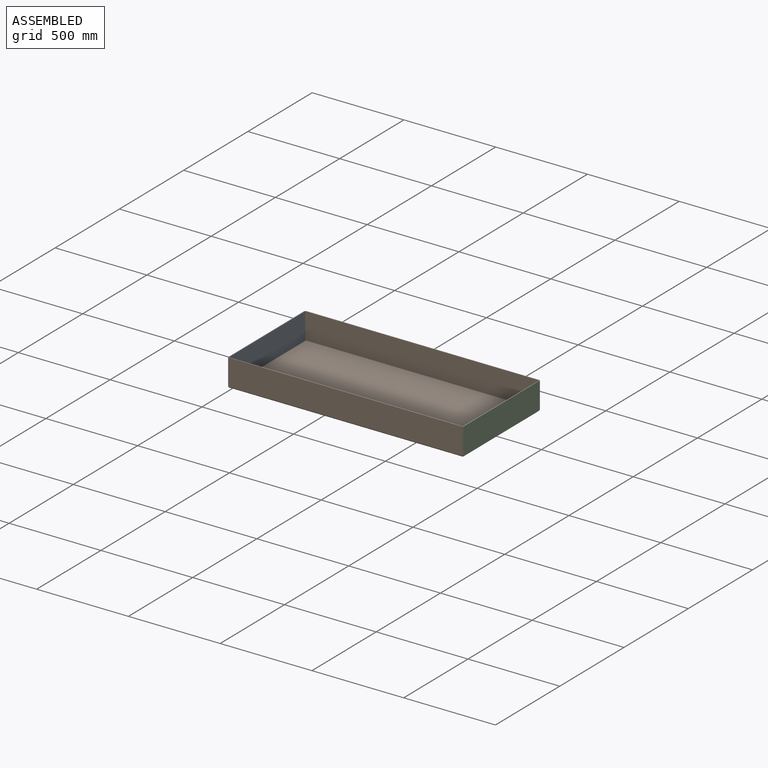
[diagram: assembled view]
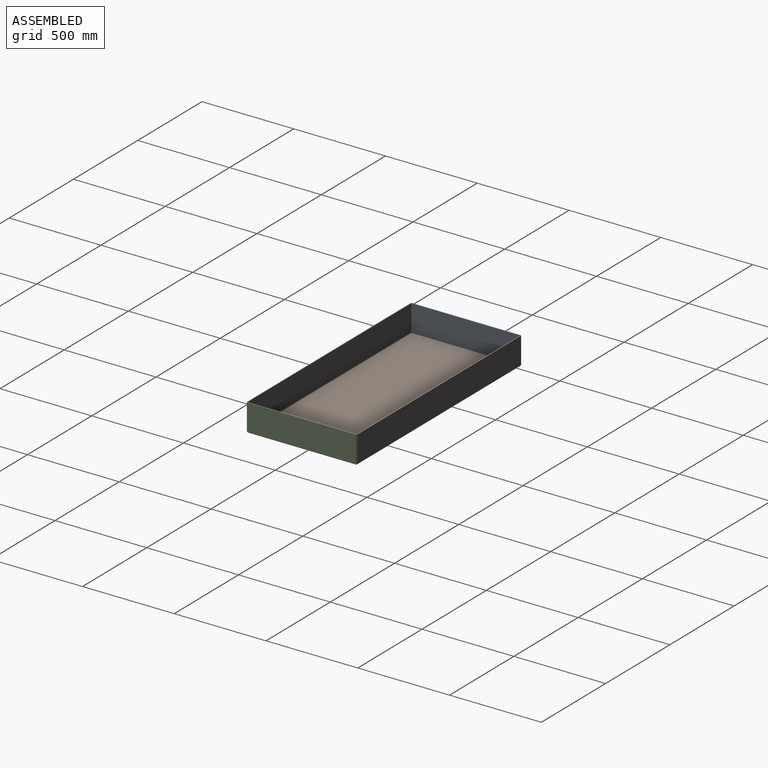
[diagram: assembled view, second angle]
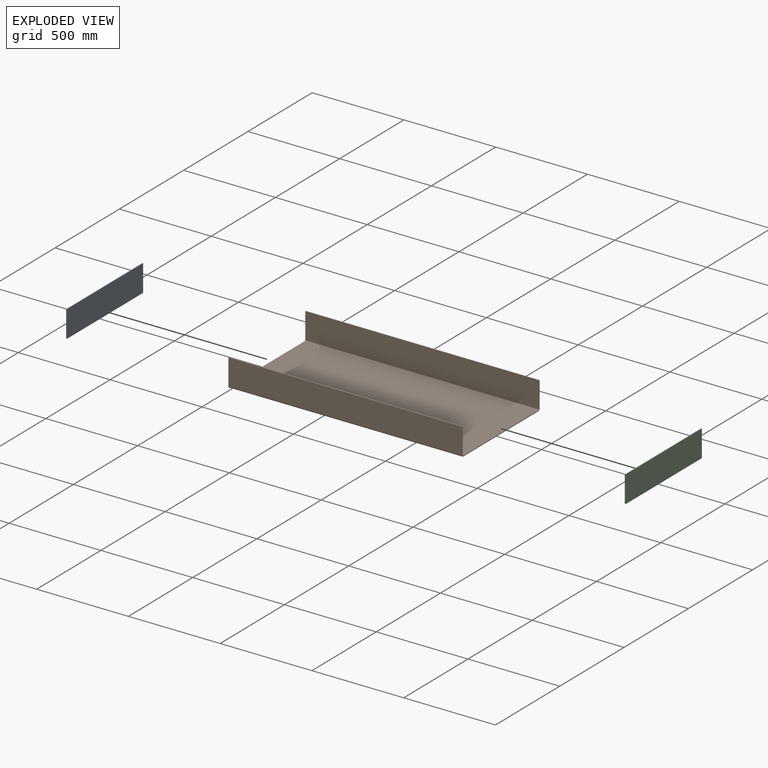
[diagram: exploded view]
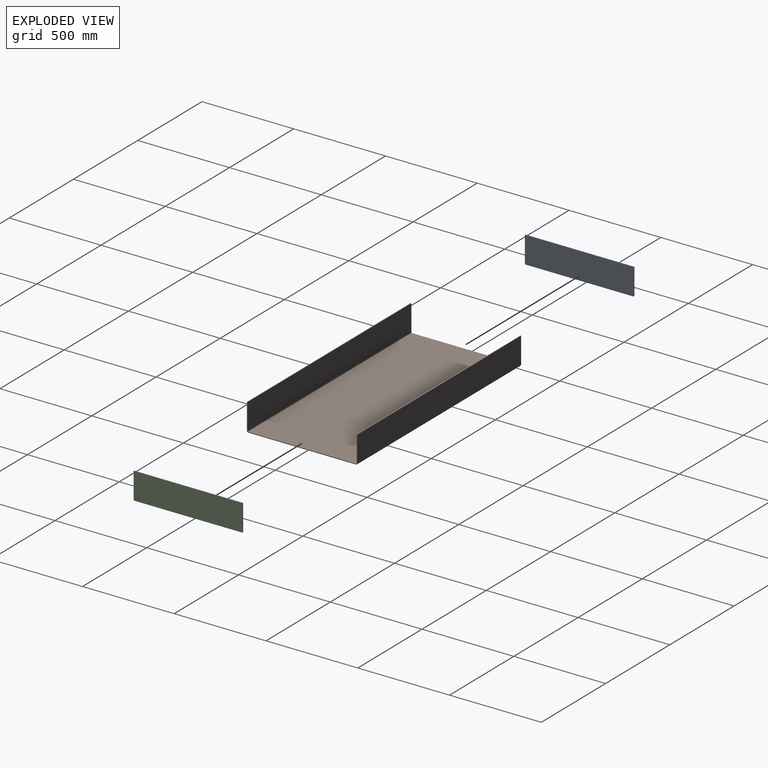
[diagram: exploded view, second angle]
ASSEMBLY  parts=3 mates=2
PART A: 8 faces, bbox 4x594x146 mm
  f0: plane 594x4mm, normal (0,0,1), area 2376mm2, adj f1,f3,f4,f5
  f1: plane 142x4mm, normal (0,-1,0), area 568mm2, adj f0,f4,f5,f6
  f2: plane 586x4mm, normal (0,0,-1), area 2344mm2, adj f4,f5,f6,f7
  f3: plane 142x4mm, normal (0,1,0), area 568mm2, adj f0,f4,f5,f7
  f4: plane 594x146mm, normal (1,0,0), area 86717.1mm2, adj f0,f1,f2,f3,f6,f7
  f5: plane 594x146mm, normal (-1,0,0), area 86717.1mm2, adj f0,f1,f2,f3,f6,f7
  f6: cylinder r=4mm len=4mm, axis (-1,0,0), area 25.1mm2, adj f1,f2,f4,f5
  f7: cylinder r=4mm len=4mm, axis (1,0,0), area 25.1mm2, adj f2,f3,f4,f5
PART B: 22 faces, bbox 1274x602x150 mm
  f0: plane 586x4mm, normal (-1,0,0), area 2344mm2, adj f2,f3,f9,f19
  f1: plane 586x4mm, normal (1,0,0), area 2344mm2, adj f2,f3,f10,f18
  f2: plane 1274x586mm, normal (0,0,-1), area 746564mm2, adj f0,f1,f11,f20
  f3: plane 1274x586mm, normal (0,0,1), area 746564mm2, adj f0,f1,f12,f21
  f4: plane 1274x4mm, normal (0,0,1), area 5096mm2, adj f5,f6,f7,f8
  f5: plane 142x4mm, normal (1,0,0), area 568mm2, adj f4,f7,f8,f10
  f6: plane 142x4mm, normal (-1,0,0), area 568mm2, adj f4,f7,f8,f9
  f7: plane 1274x142mm, normal (0,1,0), area 180908mm2, adj f4,f5,f6,f11
  f8: plane 1274x142mm, normal (0,-1,0), area 180908mm2, adj f4,f5,f6,f12
  f9: plane 8x8mm, normal (-1,0,0), area 37.7mm2, adj f0,f6,f11,f12
  f10: plane 8x8mm, normal (1,0,0), area 37.7mm2, adj f1,f5,f11,f12
  f11: cylinder r=8mm len=1274mm, axis (-1,0,0), area 16009.6mm2, adj f2,f7,f9,f10
  f12: cylinder r=4mm len=1274mm, axis (-1,0,0), area 8004.8mm2, adj f3,f8,f9,f10
  f13: plane 1274x4mm, normal (0,0,1), area 5096mm2, adj f14,f15,f16,f17
  f14: plane 142x4mm, normal (-1,0,0), area 568mm2, adj f13,f16,f17,f19
  f15: plane 142x4mm, normal (1,0,0), area 568mm2, adj f13,f16,f17,f18
  f16: plane 1274x142mm, normal (0,-1,0), area 180908mm2, adj f13,f14,f15,f20
  f17: plane 1274x142mm, normal (0,1,0), area 180908mm2, adj f13,f14,f15,f21
  f18: plane 8x8mm, normal (1,0,0), area 37.7mm2, adj f1,f15,f20,f21
  f19: plane 8x8mm, normal (-1,0,0), area 37.7mm2, adj f0,f14,f20,f21
  f20: cylinder r=8mm len=1274mm, axis (1,0,0), area 16009.6mm2, adj f2,f16,f18,f19
  f21: cylinder r=4mm len=1274mm, axis (1,0,0), area 8004.8mm2, adj f3,f17,f18,f19
PART C: same geometry as A
PLACE A t=(-995.07,640.87,-254.07)mm
PLACE B t=(-354.07,-5.36,-258.07)mm
PLACE C t=(282.93,640.87,-254.07)mm
MATE fastened C.f5 <-> B.f15  axis (-1,0,0) through (282.93,-302.36,-108.07)mm
MATE fastened A.f4 <-> B.f14  axis (1,0,0) through (-991.07,-302.36,-108.07)mm
